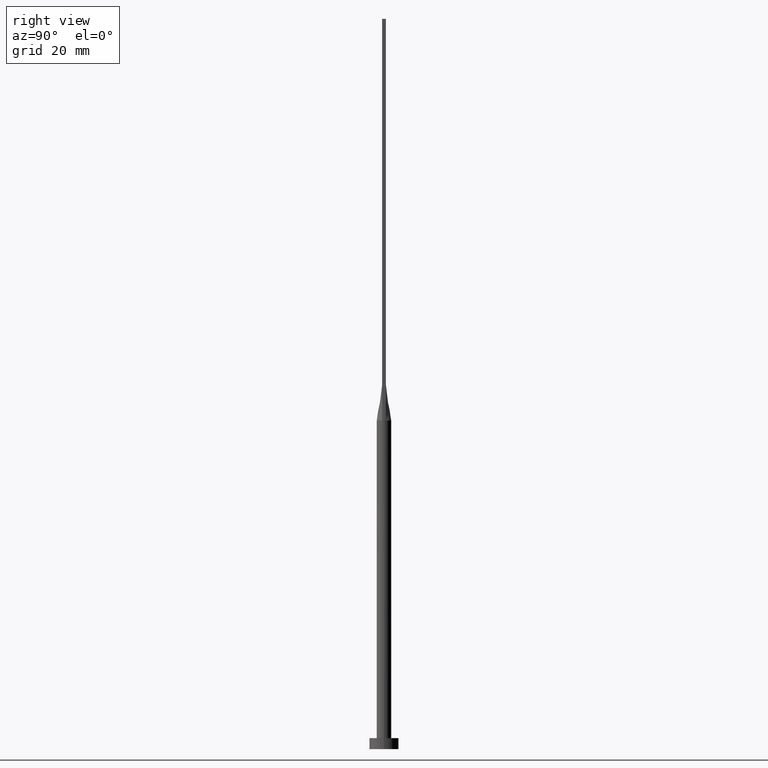
[diagram: clean part render]
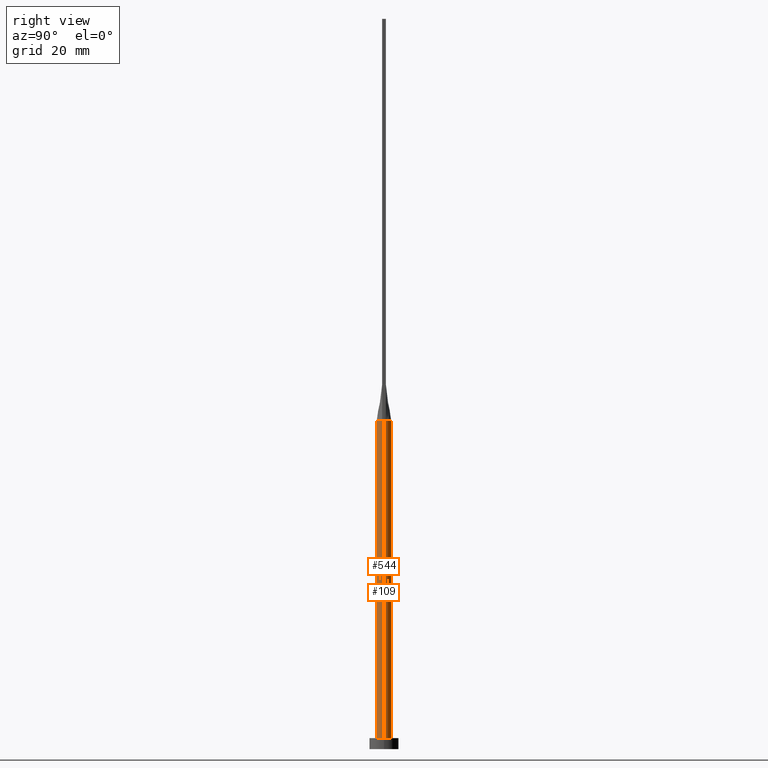
[diagram: same view with one multi-face feature highlighted, each face labeled with its STEP entity id]
A machine part, right view. The highlighted faces form ONE feature: a constant-radius fillet chain: 2 tangent blend faces with common blend radius 2 mm. The faces share edges in the B-rep.
Their STEP definitions:
[1] entity #109 (Cylinder):
#5 = CARTESIAN_POINT ( 'NONE',  ( -1.923179810488875541, 0.5494804890868837388, 90.00000000000000000 ) ) ;
#9 = DIRECTION ( 'NONE',  ( 0.000000000000000000, 0.000000000000000000, 1.000000000000000000 ) ) ;
#38 = VERTEX_POINT ( 'NONE', #124 ) ;
#51 = EDGE_CURVE ( 'NONE', #501, #38, #463, .T. ) ;
#61 = CARTESIAN_POINT ( 'NONE',  ( -1.155438169178558017, 1.647245198242353936, 90.00000000000004263 ) ) ;
#65 = CARTESIAN_POINT ( 'NONE',  ( 1.879022738048942154, 0.7035303061092218480, 90.00000000000001421 ) ) ;
#72 = CARTESIAN_POINT ( 'NONE',  ( 1.486037034853319616, 1.356520562679217834, 90.00000000000001421 ) ) ;
#75 = VECTOR ( 'NONE', #103, 1000.000000000000000 ) ;
#79 = CARTESIAN_POINT ( 'NONE',  ( 1.923154993136894975, 0.5494733089275741778, 90.00000000000000000 ) ) ;
#98 = CARTESIAN_POINT ( 'NONE',  ( 0.000000000000000000, 0.000000000000000000, 3.000000000000000000 ) ) ;
#100 = CIRCLE ( 'NONE', #492, 2.000000000000000000 ) ;
#103 = DIRECTION ( 'NONE',  ( -0.000000000000000000, -0.000000000000000000, -1.000000000000000000 ) ) ;
#109 = ADVANCED_FACE ( 'NONE', ( #373 ), #428, .T. ) ;
#111 = LINE ( 'NONE', #550, #328 ) ;
#121 = ORIENTED_EDGE ( 'NONE', *, *, #168, .F. ) ;
#122 = CARTESIAN_POINT ( 'NONE',  ( 0.000000000000000000, 0.000000000000000000, 90.00000000000000000 ) ) ;
#124 = CARTESIAN_POINT ( 'NONE',  ( 1.923154993136894975, 0.5494733089275741778, 90.00000000000000000 ) ) ;
#125 = VERTEX_POINT ( 'NONE', #170 ) ;
#126 = CARTESIAN_POINT ( 'NONE',  ( -0.5022746254375797248, 1.951069421695588169, 90.00000000000000000 ) ) ;
#129 = VERTEX_POINT ( 'NONE', #555 ) ;
#130 = CARTESIAN_POINT ( 'NONE',  ( 1.616149014776643522, 1.193458220519943103, 89.99999999999995737 ) ) ;
#166 = CARTESIAN_POINT ( 'NONE',  ( -1.879022738048941710, 0.7035303061092221810, 90.00000000000001421 ) ) ;
#168 = EDGE_CURVE ( 'NONE', #38, #538, #406, .T. ) ;
#170 = CARTESIAN_POINT ( 'NONE',  ( 2.000000000000000000, 2.449293598294706414E-16, 3.000000000000000000 ) ) ;
#192 = EDGE_LOOP ( 'NONE', ( #210, #220, #444, #238, #258, #121 ) ) ;
#198 = AXIS2_PLACEMENT_3D ( 'NONE', #122, #380, #297 ) ;
#201 = CARTESIAN_POINT ( 'NONE',  ( 0.2514338042514535632, 1.999999999999999556, 90.00000000000000000 ) ) ;
#210 = ORIENTED_EDGE ( 'NONE', *, *, #51, .F. ) ;
#220 = ORIENTED_EDGE ( 'NONE', *, *, #361, .T. ) ;
#237 = CARTESIAN_POINT ( 'NONE',  ( -1.486037034853319616, 1.356520562679218056, 90.00000000000004263 ) ) ;
#238 = ORIENTED_EDGE ( 'NONE', *, *, #256, .F. ) ;
#240 = CARTESIAN_POINT ( 'NONE',  ( 0.9545234919502409987, 1.774214358793529955, 90.00000000000001421 ) ) ;
#245 = CARTESIAN_POINT ( 'NONE',  ( 0.5022746254375803909, 1.951069421695587947, 90.00000000000001421 ) ) ;
#252 = DIRECTION ( 'NONE',  ( 1.000000000000000000, 0.000000000000000000, 0.000000000000000000 ) ) ;
#256 = EDGE_CURVE ( 'NONE', #129, #390, #573, .T. ) ;
#258 = ORIENTED_EDGE ( 'NONE', *, *, #519, .F. ) ;
#265 = AXIS2_PLACEMENT_3D ( 'NONE', #465, #9, #279 ) ;
#279 = DIRECTION ( 'NONE',  ( 1.000000000000000000, 0.000000000000000000, 0.000000000000000000 ) ) ;
#289 = DIRECTION ( 'NONE',  ( -0.000000000000000000, -0.000000000000000000, -1.000000000000000000 ) ) ;
#290 = CARTESIAN_POINT ( 'NONE',  ( 1.155438169178558461, 1.647245198242353714, 90.00000000000001421 ) ) ;
#297 = DIRECTION ( 'NONE',  ( -1.000000000000000000, 0.000000000000000000, 0.000000000000000000 ) ) ;
#308 = CARTESIAN_POINT ( 'NONE',  ( 0.000000000000000000, 0.000000000000000000, 90.00000000000000000 ) ) ;
#328 = VECTOR ( 'NONE', #289, 1000.000000000000000 ) ;
#330 = CARTESIAN_POINT ( 'NONE',  ( -2.000000000000000000, 0.000000000000000000, 3.000000000000000000 ) ) ;
#351 = DIRECTION ( 'NONE',  ( 0.000000000000000000, 0.000000000000000000, 1.000000000000000000 ) ) ;
#352 = CARTESIAN_POINT ( 'NONE',  ( -2.000000000000000000, 0.000000000000000000, 90.00000000000000000 ) ) ;
#361 = EDGE_CURVE ( 'NONE', #501, #125, #111, .T. ) ;
#373 = FACE_OUTER_BOUND ( 'NONE', #192, .T. ) ;
#380 = DIRECTION ( 'NONE',  ( -0.000000000000000000, -0.000000000000000000, -1.000000000000000000 ) ) ;
#382 = DIRECTION ( 'NONE',  ( 0.000000000000000000, 0.000000000000000000, 1.000000000000000000 ) ) ;
#385 = CARTESIAN_POINT ( 'NONE',  ( -1.812374357931688884, 0.8669367617086288780, 90.00000000000001421 ) ) ;
#390 = VERTEX_POINT ( 'NONE', #330 ) ;
#391 = DIRECTION ( 'NONE',  ( 1.000000000000000000, 0.000000000000000000, 0.000000000000000000 ) ) ;
#401 = AXIS2_PLACEMENT_3D ( 'NONE', #308, #382, #252 ) ;
#406 = B_SPLINE_CURVE_WITH_KNOTS ( 'NONE', 3,
 ( #79, #65, #489, #130, #72, #290, #240, #245, #201, #562, #126, #471, #61, #237, #424, #385, #166, #439 ),
 .UNSPECIFIED., .F., .F.,
 ( 4, 2, 2, 2, 2, 2, 2, 2, 4 ),
 ( 0.000000000000000000, 0.1249999999999999722, 0.2500000000000000000, 0.3750000000000000000, 0.5000000000000001110, 0.6250000000000001110, 0.7500000000000000000, 0.8750000000000000000, 1.000000000000000000 ),
 .UNSPECIFIED. ) ;
#414 = CIRCLE ( 'NONE', #265, 2.000000000000000000 ) ;
#424 = CARTESIAN_POINT ( 'NONE',  ( -1.616149014776643966, 1.193458220519943103, 90.00000000000001421 ) ) ;
#428 = CYLINDRICAL_SURFACE ( 'NONE', #198, 2.000000000000000000 ) ;
#439 = CARTESIAN_POINT ( 'NONE',  ( -1.923179810488875541, 0.5494804890868837388, 90.00000000000000000 ) ) ;
#444 = ORIENTED_EDGE ( 'NONE', *, *, #461, .T. ) ;
#461 = EDGE_CURVE ( 'NONE', #125, #390, #100, .T. ) ;
#463 = CIRCLE ( 'NONE', #401, 2.000000000000000000 ) ;
#465 = CARTESIAN_POINT ( 'NONE',  ( 0.000000000000000000, 0.000000000000000000, 90.00000000000000000 ) ) ;
#471 = CARTESIAN_POINT ( 'NONE',  ( -0.9545234919502401105, 1.774214358793530177, 90.00000000000000000 ) ) ;
#489 = CARTESIAN_POINT ( 'NONE',  ( 1.812374357931689328, 0.8669367617086293221, 90.00000000000001421 ) ) ;
#492 = AXIS2_PLACEMENT_3D ( 'NONE', #98, #351, #391 ) ;
#501 = VERTEX_POINT ( 'NONE', #503 ) ;
#503 = CARTESIAN_POINT ( 'NONE',  ( 2.000000000000000000, 2.759698982225367658E-17, 90.00000000000000000 ) ) ;
#519 = EDGE_CURVE ( 'NONE', #538, #129, #414, .T. ) ;
#538 = VERTEX_POINT ( 'NONE', #5 ) ;
#550 = CARTESIAN_POINT ( 'NONE',  ( 2.000000000000000000, 2.449293598294706414E-16, 90.00000000000000000 ) ) ;
#555 = CARTESIAN_POINT ( 'NONE',  ( -2.000000000000000000, 8.710755549421510381E-17, 90.00000000000000000 ) ) ;
#562 = CARTESIAN_POINT ( 'NONE',  ( -0.2514338042514528415, 1.999999999999999556, 90.00000000000001421 ) ) ;
#573 = LINE ( 'NONE', #352, #75 ) ;
[2] entity #544 (Cylinder):
#11 = DIRECTION ( 'NONE',  ( 0.000000000000000000, 0.000000000000000000, 1.000000000000000000 ) ) ;
#12 = VERTEX_POINT ( 'NONE', #581 ) ;
#23 = CARTESIAN_POINT ( 'NONE',  ( 0.000000000000000000, 0.000000000000000000, 3.000000000000000000 ) ) ;
#35 = EDGE_LOOP ( 'NONE', ( #383, #43, #491, #268, #528, #169 ) ) ;
#42 = AXIS2_PLACEMENT_3D ( 'NONE', #495, #275, #535 ) ;
#43 = ORIENTED_EDGE ( 'NONE', *, *, #346, .F. ) ;
#55 = CYLINDRICAL_SURFACE ( 'NONE', #448, 2.000000000000000000 ) ;
#59 = EDGE_CURVE ( 'NONE', #12, #82, #557, .T. ) ;
#67 = DIRECTION ( 'NONE',  ( -1.000000000000000000, 0.000000000000000000, 0.000000000000000000 ) ) ;
#69 = CIRCLE ( 'NONE', #42, 2.000000000000000000 ) ;
#75 = VECTOR ( 'NONE', #103, 1000.000000000000000 ) ;
#82 = VERTEX_POINT ( 'NONE', #302 ) ;
#103 = DIRECTION ( 'NONE',  ( -0.000000000000000000, -0.000000000000000000, -1.000000000000000000 ) ) ;
#111 = LINE ( 'NONE', #550, #328 ) ;
#125 = VERTEX_POINT ( 'NONE', #170 ) ;
#129 = VERTEX_POINT ( 'NONE', #555 ) ;
#135 = EDGE_CURVE ( 'NONE', #390, #125, #577, .T. ) ;
#165 = DIRECTION ( 'NONE',  ( 1.000000000000000000, 0.000000000000000000, 0.000000000000000000 ) ) ;
#169 = ORIENTED_EDGE ( 'NONE', *, *, #135, .T. ) ;
#170 = CARTESIAN_POINT ( 'NONE',  ( 2.000000000000000000, 2.449293598294706414E-16, 3.000000000000000000 ) ) ;
#229 = CARTESIAN_POINT ( 'NONE',  ( 0.000000000000000000, 0.000000000000000000, 90.00000000000000000 ) ) ;
#230 = CARTESIAN_POINT ( 'NONE',  ( 0.000000000000000000, 0.000000000000000000, 90.00000000000000000 ) ) ;
#256 = EDGE_CURVE ( 'NONE', #129, #390, #573, .T. ) ;
#268 = ORIENTED_EDGE ( 'NONE', *, *, #271, .F. ) ;
#271 = EDGE_CURVE ( 'NONE', #129, #12, #69, .T. ) ;
#275 = DIRECTION ( 'NONE',  ( 0.000000000000000000, 0.000000000000000000, 1.000000000000000000 ) ) ;
#282 = FACE_OUTER_BOUND ( 'NONE', #35, .T. ) ;
#289 = DIRECTION ( 'NONE',  ( -0.000000000000000000, -0.000000000000000000, -1.000000000000000000 ) ) ;
#299 = CIRCLE ( 'NONE', #521, 2.000000000000000000 ) ;
#302 = CARTESIAN_POINT ( 'NONE',  ( 1.923186205402444449, -0.5494823831763672173, 90.00000000000000000 ) ) ;
#310 = DIRECTION ( 'NONE',  ( 0.000000000000000000, 0.000000000000000000, 1.000000000000000000 ) ) ;
#324 = AXIS2_PLACEMENT_3D ( 'NONE', #23, #475, #165 ) ;
#326 = DIRECTION ( 'NONE',  ( 1.000000000000000000, 3.552713678800500929E-15, 0.000000000000000000 ) ) ;
#328 = VECTOR ( 'NONE', #289, 1000.000000000000000 ) ;
#330 = CARTESIAN_POINT ( 'NONE',  ( -2.000000000000000000, 0.000000000000000000, 3.000000000000000000 ) ) ;
#346 = EDGE_CURVE ( 'NONE', #82, #501, #299, .T. ) ;
#352 = CARTESIAN_POINT ( 'NONE',  ( -2.000000000000000000, 0.000000000000000000, 90.00000000000000000 ) ) ;
#355 = AXIS2_PLACEMENT_3D ( 'NONE', #377, #310, #430 ) ;
#361 = EDGE_CURVE ( 'NONE', #501, #125, #111, .T. ) ;
#377 = CARTESIAN_POINT ( 'NONE',  ( 0.000000000000000000, 0.000000000000000000, 90.00000000000000000 ) ) ;
#383 = ORIENTED_EDGE ( 'NONE', *, *, #361, .F. ) ;
#390 = VERTEX_POINT ( 'NONE', #330 ) ;
#416 = DIRECTION ( 'NONE',  ( -0.000000000000000000, -0.000000000000000000, -1.000000000000000000 ) ) ;
#430 = DIRECTION ( 'NONE',  ( 1.000000000000000000, 0.000000000000000000, 0.000000000000000000 ) ) ;
#448 = AXIS2_PLACEMENT_3D ( 'NONE', #229, #416, #67 ) ;
#475 = DIRECTION ( 'NONE',  ( 0.000000000000000000, 0.000000000000000000, 1.000000000000000000 ) ) ;
#491 = ORIENTED_EDGE ( 'NONE', *, *, #59, .F. ) ;
#495 = CARTESIAN_POINT ( 'NONE',  ( 0.000000000000000000, 0.000000000000000000, 90.00000000000000000 ) ) ;
#501 = VERTEX_POINT ( 'NONE', #503 ) ;
#503 = CARTESIAN_POINT ( 'NONE',  ( 2.000000000000000000, 2.759698982225367658E-17, 90.00000000000000000 ) ) ;
#521 = AXIS2_PLACEMENT_3D ( 'NONE', #230, #11, #326 ) ;
#528 = ORIENTED_EDGE ( 'NONE', *, *, #256, .T. ) ;
#535 = DIRECTION ( 'NONE',  ( 1.000000000000000000, 0.000000000000000000, 0.000000000000000000 ) ) ;
#544 = ADVANCED_FACE ( 'NONE', ( #282 ), #55, .T. ) ;
#550 = CARTESIAN_POINT ( 'NONE',  ( 2.000000000000000000, 2.449293598294706414E-16, 90.00000000000000000 ) ) ;
#555 = CARTESIAN_POINT ( 'NONE',  ( -2.000000000000000000, 8.710755549421510381E-17, 90.00000000000000000 ) ) ;
#557 = CIRCLE ( 'NONE', #355, 2.000000000000000000 ) ;
#573 = LINE ( 'NONE', #352, #75 ) ;
#577 = CIRCLE ( 'NONE', #324, 2.000000000000000000 ) ;
#581 = CARTESIAN_POINT ( 'NONE',  ( -1.923161340940673369, -0.5494751859438878894, 90.00000000000000000 ) ) ;